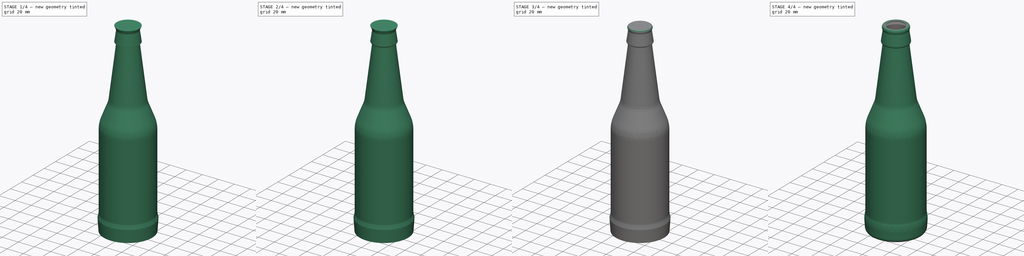
[diagram: build sequence overview — one tinted view per stage of 4, left to right]
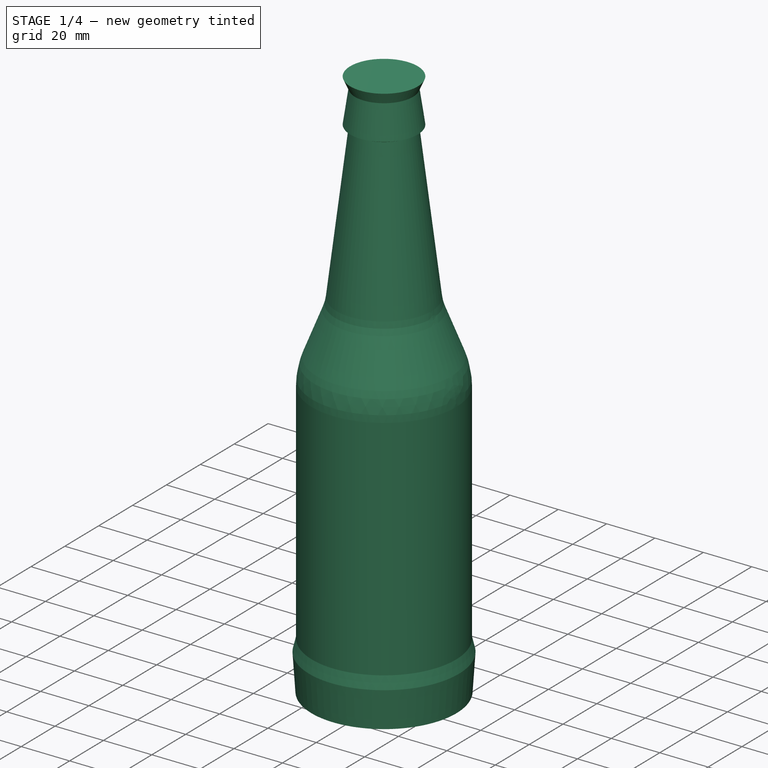
[diagram: stage 1 of 4 — iso view after this stage's code; geometry added in this stage tinted green]
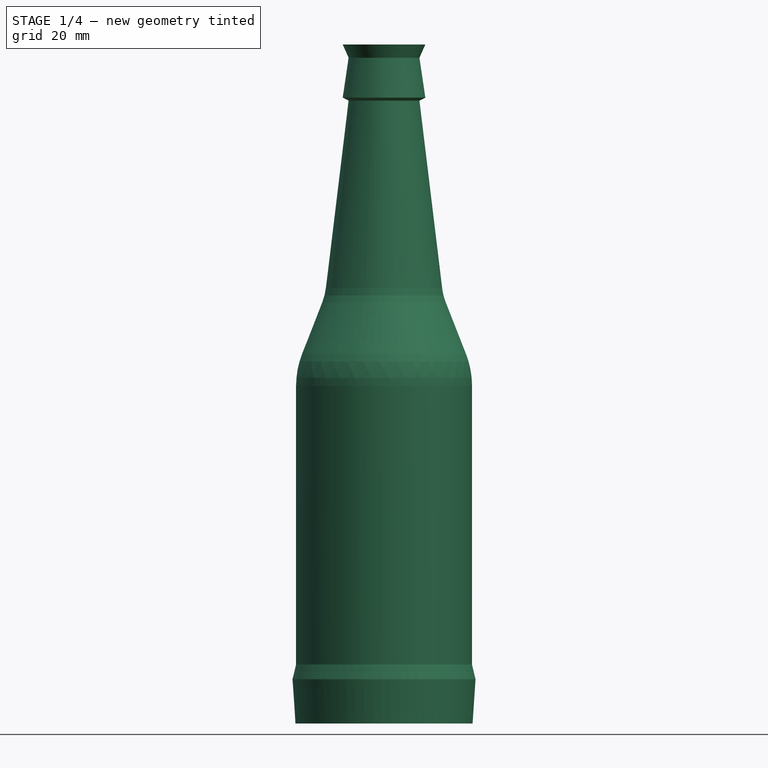
[diagram: stage 1 of 4 — front view after this stage's code; geometry added in this stage tinted green]
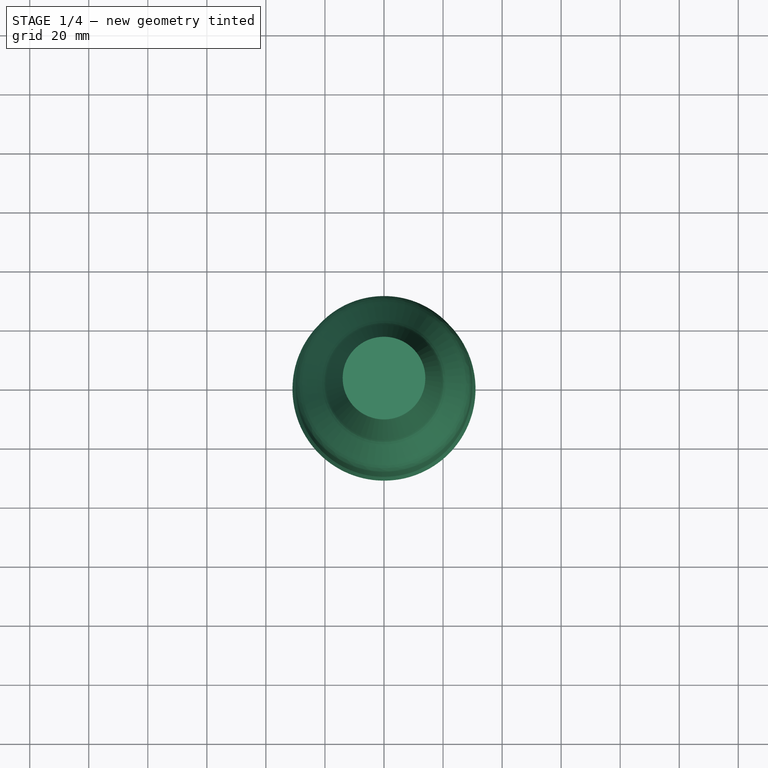
[diagram: stage 1 of 4 — top view after this stage's code; geometry added in this stage tinted green]
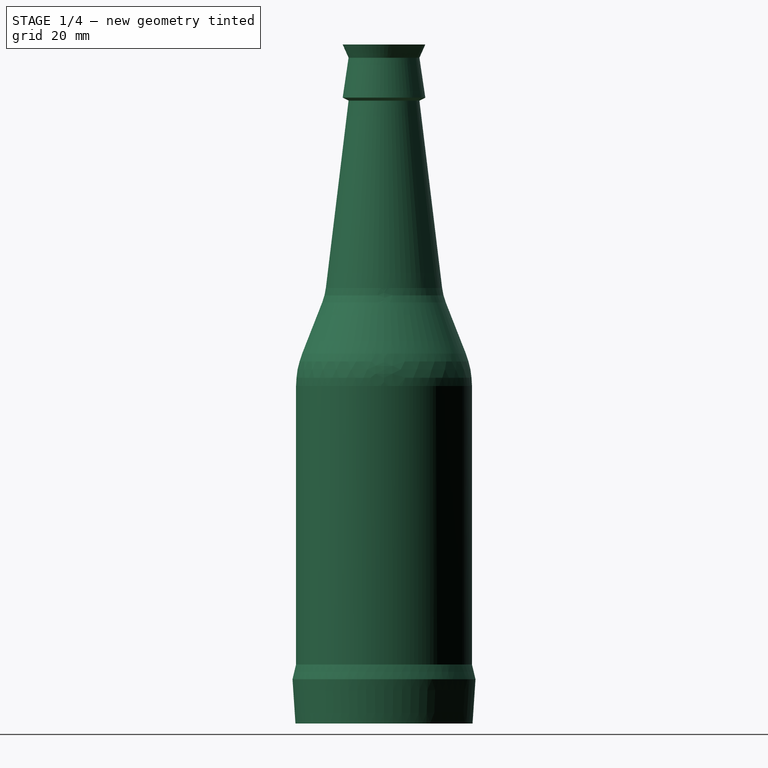
[diagram: stage 1 of 4 — right view after this stage's code; geometry added in this stage tinted green]
FCSTD DOCUMENT  (FreeCAD 0.15R4671 (Git))
Label: beer_bottle
License: CreativeCommons Attribution
LicenseURL: http://creativecommons.org/licenses/by/4.0/
objects: Part::Fillet×9, Sketcher::SketchObject×1, Part::Revolution×1, Part::Thickness×1
note: 12 computed .brp shape members not serialized (recipe doc carries the construction recipe); baked Part::Feature solids carry a one-line shape summary decoded from their .brp

FEATURE [Sketcher::SketchObject] Sketch
  Placement = pos=(0,0,0) rot=(1,0,0;1.5708rad)
  sketch-geometry (12):
    g0: LineSegment StartX=29.8 StartY=120 StartZ=0 EndX=20 EndY=145 EndZ=0
    g1: LineSegment StartX=20 StartY=145 StartZ=0 EndX=12 EndY=211 EndZ=0
    g2: LineSegment StartX=12 StartY=211 StartZ=0 EndX=14 EndY=212 EndZ=0
    g3: LineSegment StartX=30 StartY=0 StartZ=0 EndX=31 EndY=15 EndZ=0
    g4: LineSegment StartX=31 StartY=15 StartZ=0 EndX=29.8 EndY=20 EndZ=0
    g5: LineSegment StartX=29.8 StartY=20 StartZ=0 EndX=29.8 EndY=120 EndZ=0
    g6: LineSegment StartX=14 StartY=230 StartZ=0 EndX=12 EndY=225.525 EndZ=0
    g7: LineSegment StartX=12 StartY=225.525 StartZ=0 EndX=14 EndY=212 EndZ=0
    g8: LineSegment StartX=14 StartY=230 StartZ=0 EndX=0 EndY=230 EndZ=0
    g9: LineSegment StartX=0 StartY=230 StartZ=0 EndX=0 EndY=1 EndZ=0
    g10: ArcOfCircle CenterX=0 CenterY=-299 CenterZ=0 NormalX=0 NormalY=0 NormalZ=1 Radius=300 StartAngle=1.48912 EndAngle=1.5708
    g11: LineSegment StartX=24.4745 StartY=0 StartZ=0 EndX=30 EndY=0 EndZ=0
  constraints (36):
    c: Coincident(g1,g0)
    c: Coincident(g2,g1)
    c: Coincident(g3,g4)
    c: Coincident(g4,g5)
    c: Coincident(g5,g0)
    c: Vertical(g5)
    c: DistanceY(g-1,g6) = 230
    c: DistanceY(g-1,g0) = 120
    c: DistanceX(g3,g3) = -1
    c: DistanceY(g3,g3) = -15
    c: DistanceY(g4,g3) = -20
    c: DistanceX(g-1,g4) = 29.8
    c: DistanceY(g0,g0) = 25
    c: DistanceX(g-1,g0) = 20
    c: DistanceX(g-1,g1) = 12
    c: DistanceX(g2,g1) = -2
    c: DistanceY(g2,g1) = -1
    c: Coincident(g6,g7)
    c: Coincident(g7,g2)
    c: DistanceX(g-1,g6) = 12
    c: DistanceX(g6,g6) = -2
    c: Coincident(g8,g6)
    c: Horizontal(g8)
    c: PointOnObject(g8,g-2)
    c: Vertical(g9)
    c: Coincident(g8,g9)
    c: PointOnObject(g10,g-2)
    c: Radius(g10) = 300
    c: Coincident(g11,g10)
    c: Coincident(g11,g3)
    c: Horizontal(g11)
    c: PointOnObject(g3,g-1)
    c: DistanceX(g-1,g3) = 30
    c: Coincident(g9,g10)
    c: DistanceY(g-1,g9) = 1
    c: DistanceY(g2,g6) = 18
FEATURE [Part::Revolution] Revolve
  Angle = 360
  Axis = (0,0,1)
  Base = (0,0,0)
  Solid = true
  Source = -> Sketch
FEATURE [Part::Fillet] Fillet
  Base = -> Revolve
  Edges = 1 edges r=30: [Edge7]
FEATURE [Part::Fillet] Fillet001
  Base = -> Fillet
  Edges = 1 edges r=20: [Edge9]
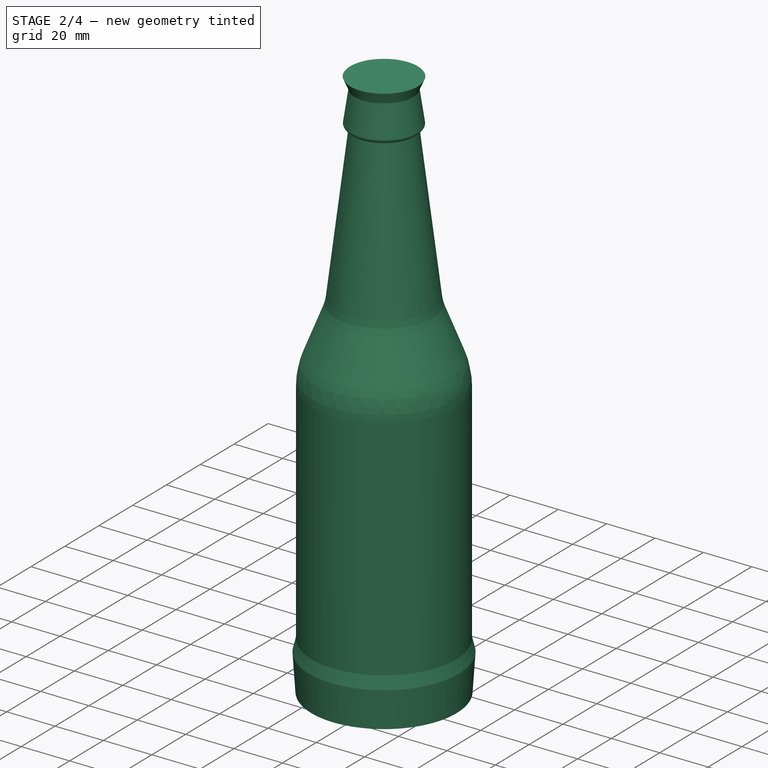
[diagram: stage 2 of 4 — iso view after this stage's code; geometry added in this stage tinted green]
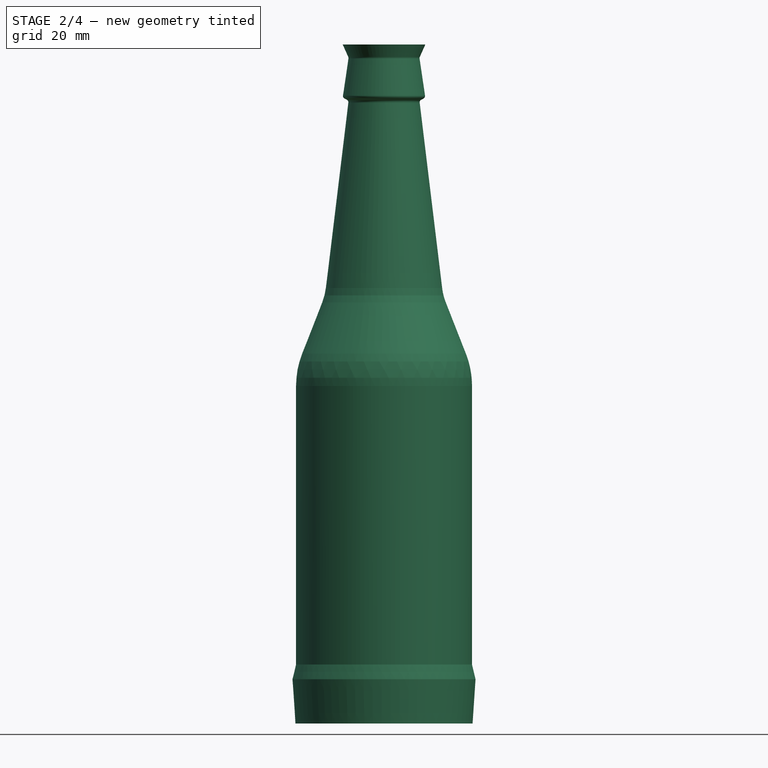
[diagram: stage 2 of 4 — front view after this stage's code; geometry added in this stage tinted green]
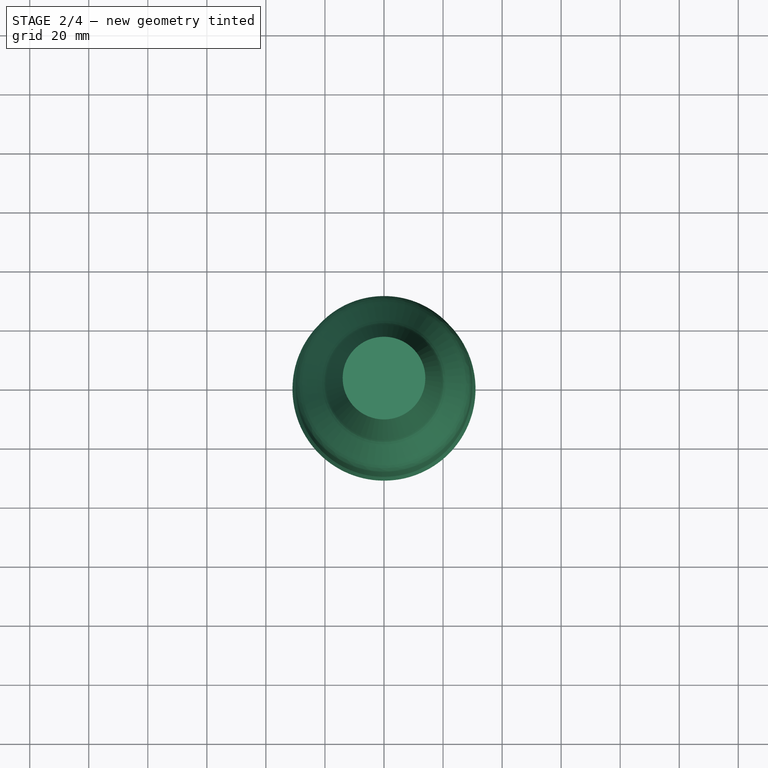
[diagram: stage 2 of 4 — top view after this stage's code; geometry added in this stage tinted green]
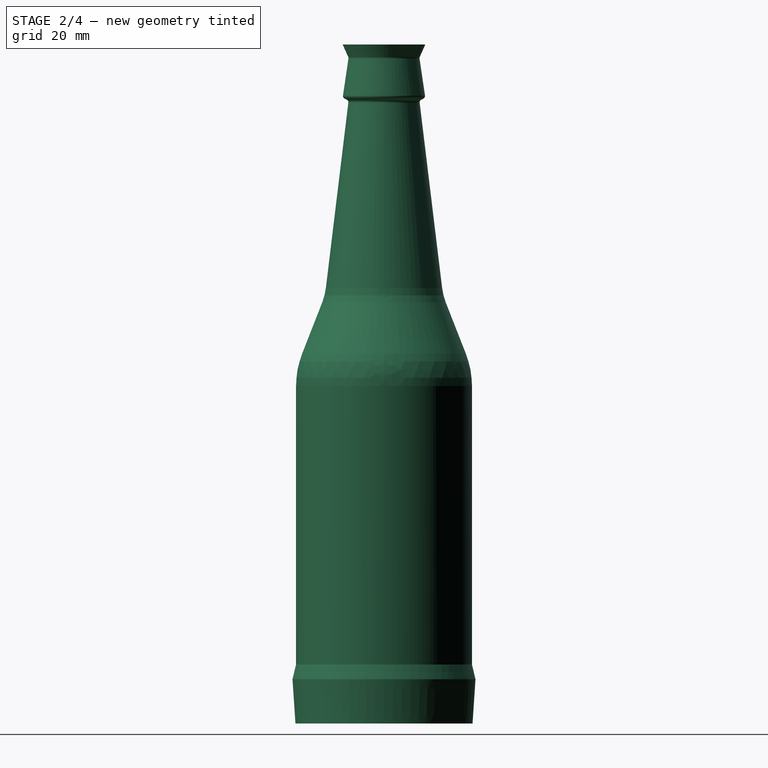
[diagram: stage 2 of 4 — right view after this stage's code; geometry added in this stage tinted green]
FEATURE [Part::Fillet] Fillet002
  Base = -> Fillet001
  Edges = 1 edges r=1: [Edge16]
FEATURE [Part::Fillet] Fillet003
  Base = -> Fillet002
  Edges = 1 edges r=1: [Edge3]
FEATURE [Part::Fillet] Fillet004
  Base = -> Fillet003
  Edges = 1 edges r=1: [Edge9]
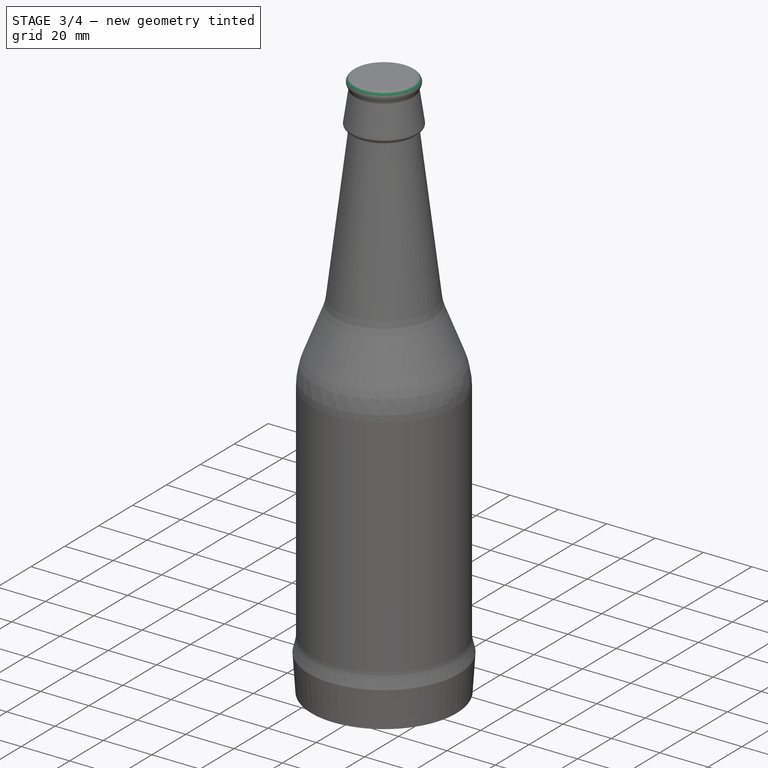
[diagram: stage 3 of 4 — iso view after this stage's code; geometry added in this stage tinted green]
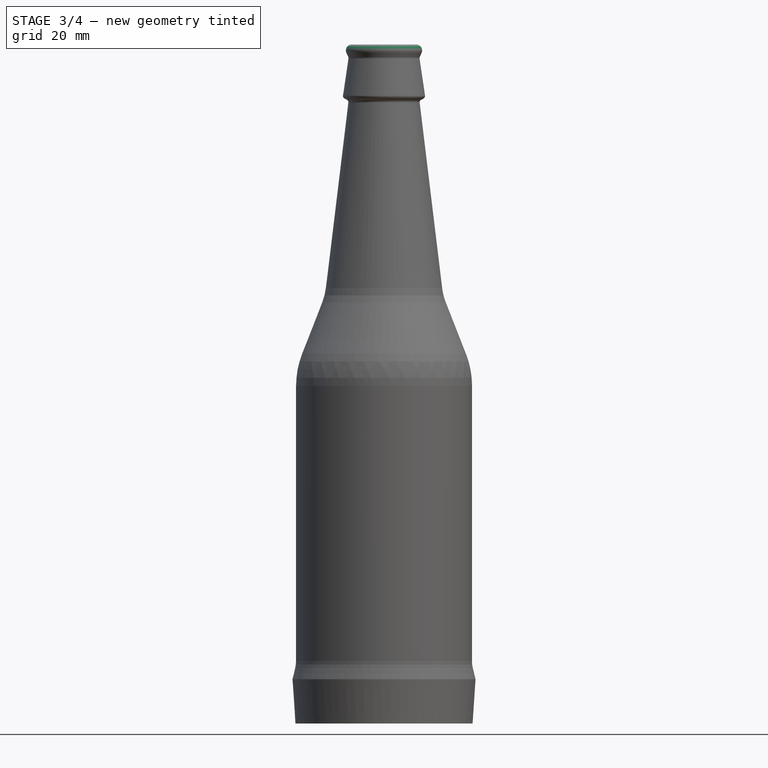
[diagram: stage 3 of 4 — front view after this stage's code; geometry added in this stage tinted green]
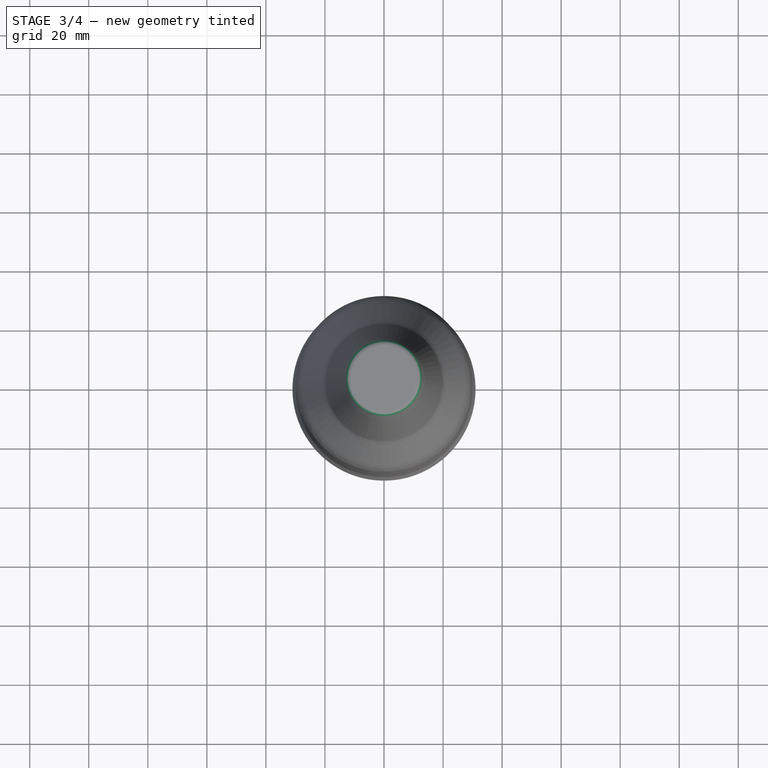
[diagram: stage 3 of 4 — top view after this stage's code; geometry added in this stage tinted green]
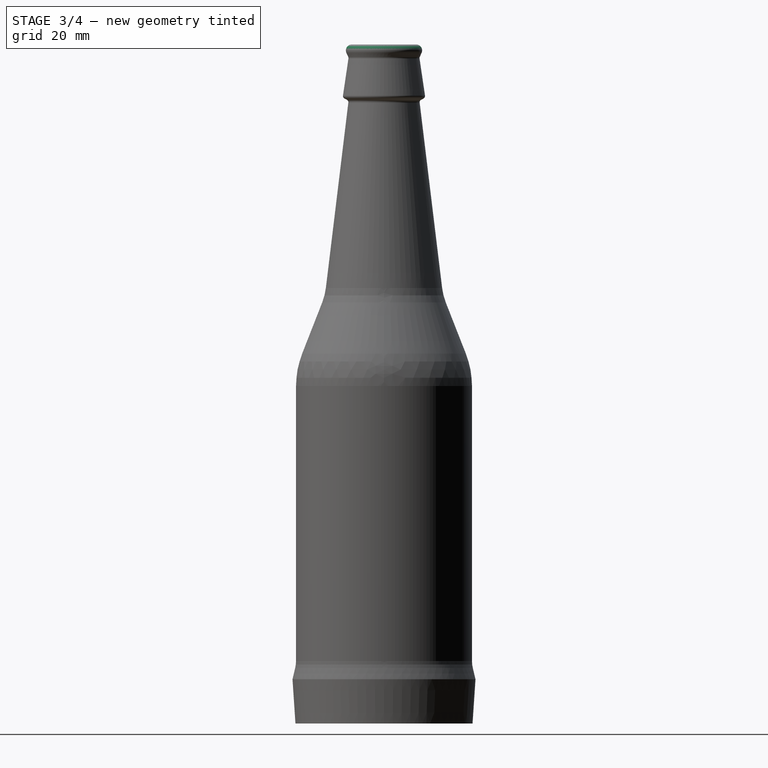
[diagram: stage 3 of 4 — right view after this stage's code; geometry added in this stage tinted green]
FEATURE [Part::Fillet] Fillet005
  Base = -> Fillet004
  Edges = 1 edges r=2: [Edge19]
FEATURE [Part::Fillet] Fillet006
  Base = -> Fillet005
  Edges = 1 edges r=10: [Edge25]
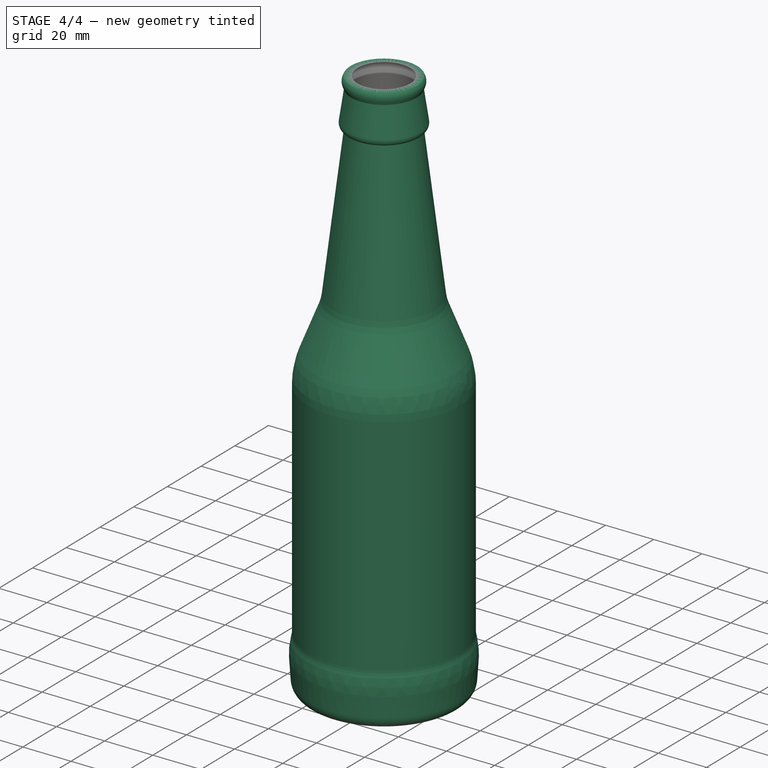
[diagram: stage 4 of 4 — iso view after this stage's code; geometry added in this stage tinted green]
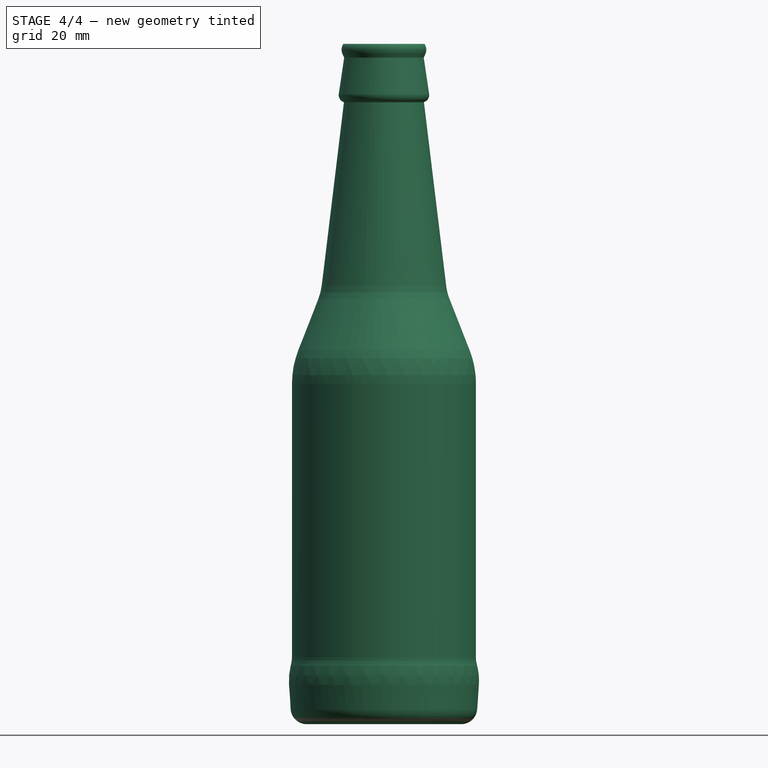
[diagram: stage 4 of 4 — front view after this stage's code; geometry added in this stage tinted green]
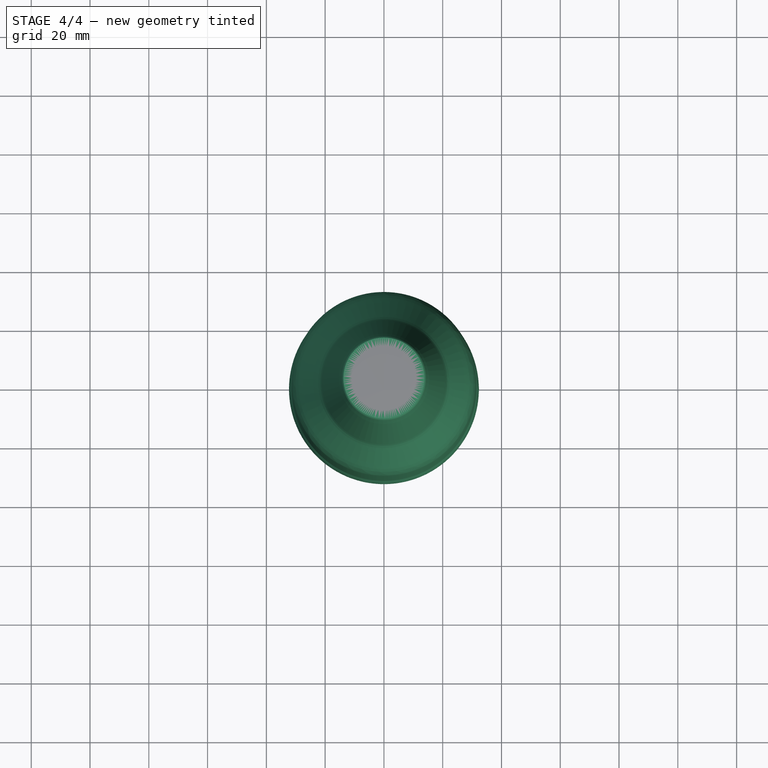
[diagram: stage 4 of 4 — top view after this stage's code; geometry added in this stage tinted green]
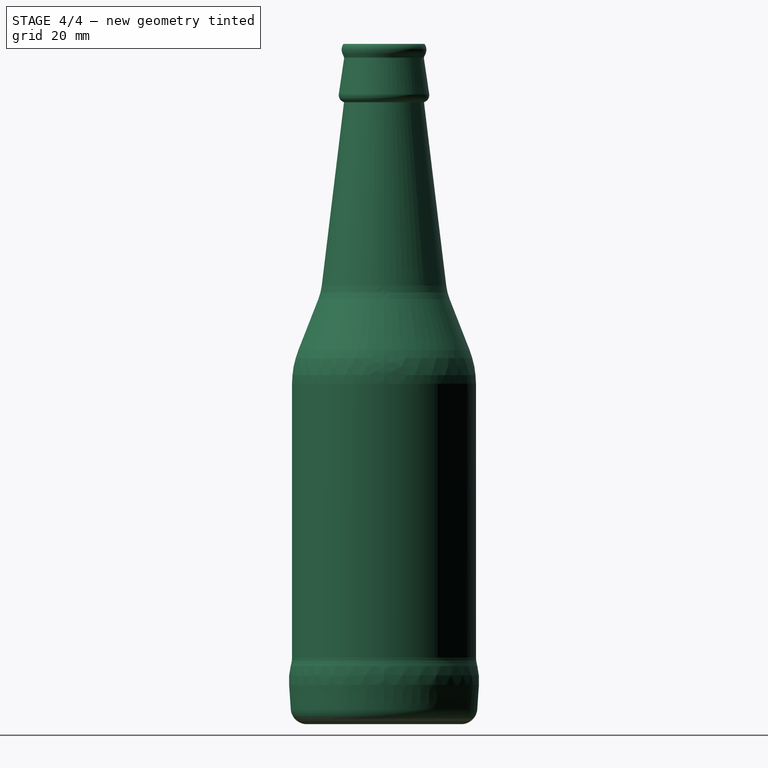
[diagram: stage 4 of 4 — right view after this stage's code; geometry added in this stage tinted green]
FEATURE [Part::Fillet] Fillet007
  Base = -> Fillet006
  Edges = 1 edges r=20: [Edge9]
FEATURE [Part::Fillet] Fillet008
  Base = -> Fillet007
  Edges = 1 edges r=4: [Edge9]
FEATURE [Part::Thickness] Thickness
  Faces = -> Fillet008 [Face20]
  Intersection = false
  Join = 0
  Mode = 0
  SelfIntersection = false
  Value = 1.5
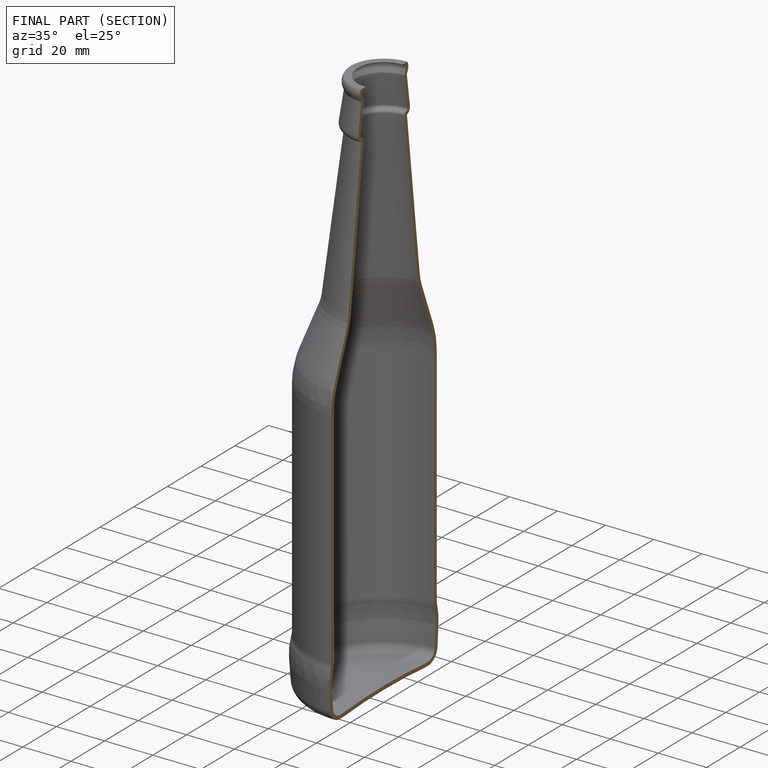
[diagram: finished part — half-section view (interior)]
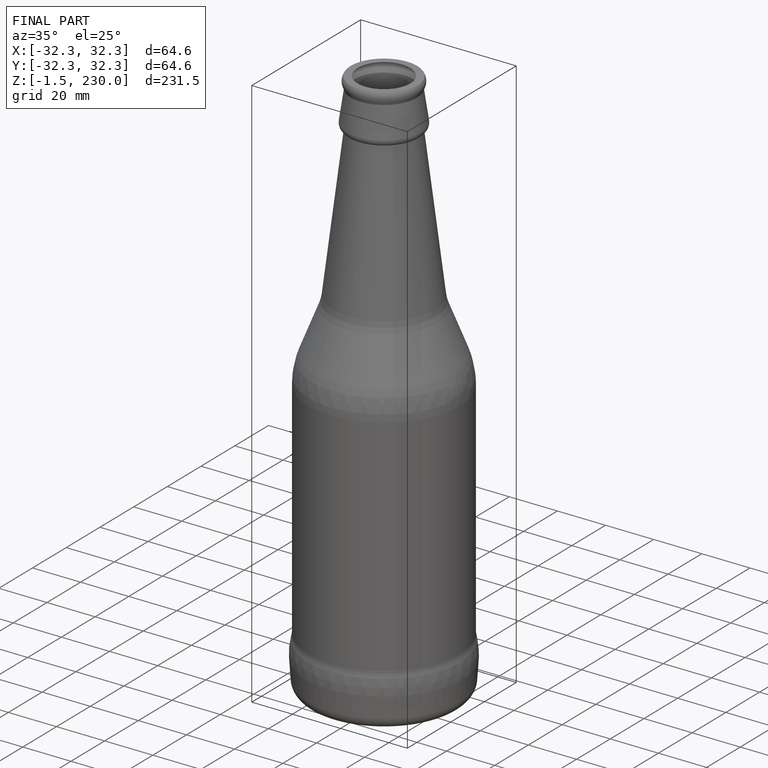
[diagram: finished part — iso view with bounding-box wireframe]
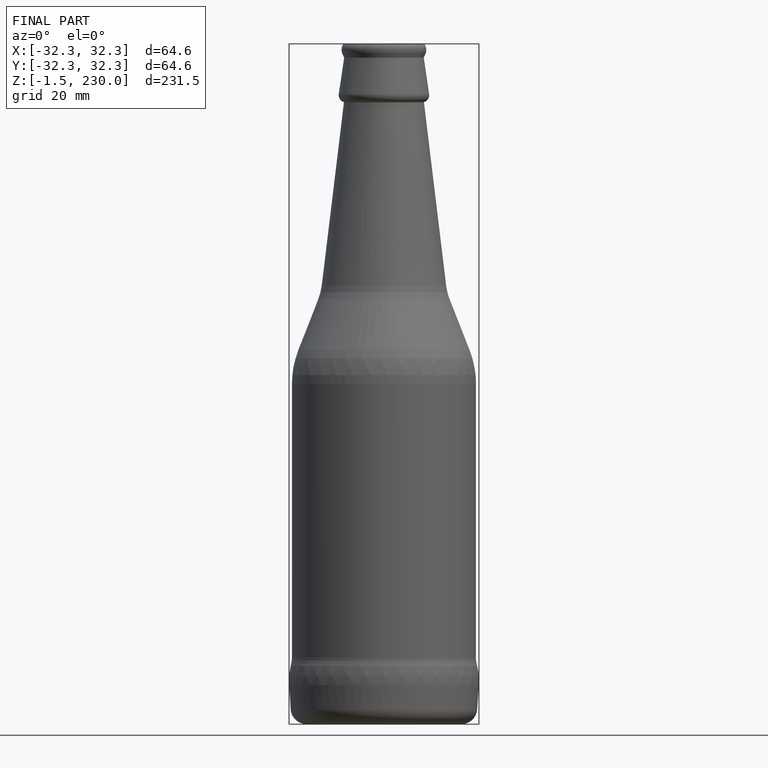
[diagram: finished part — front view with bounding-box wireframe]
